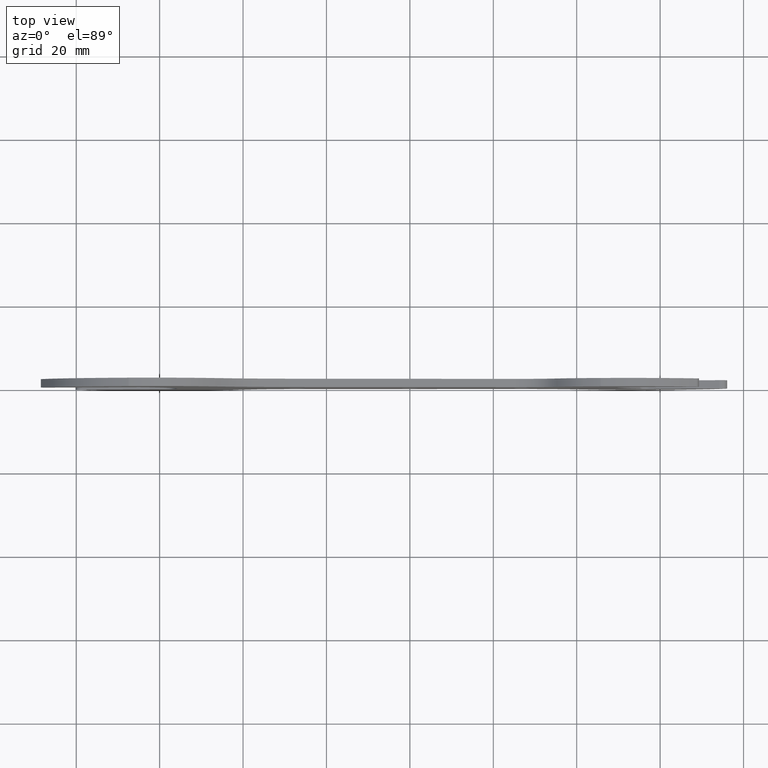
[diagram: clean part render]
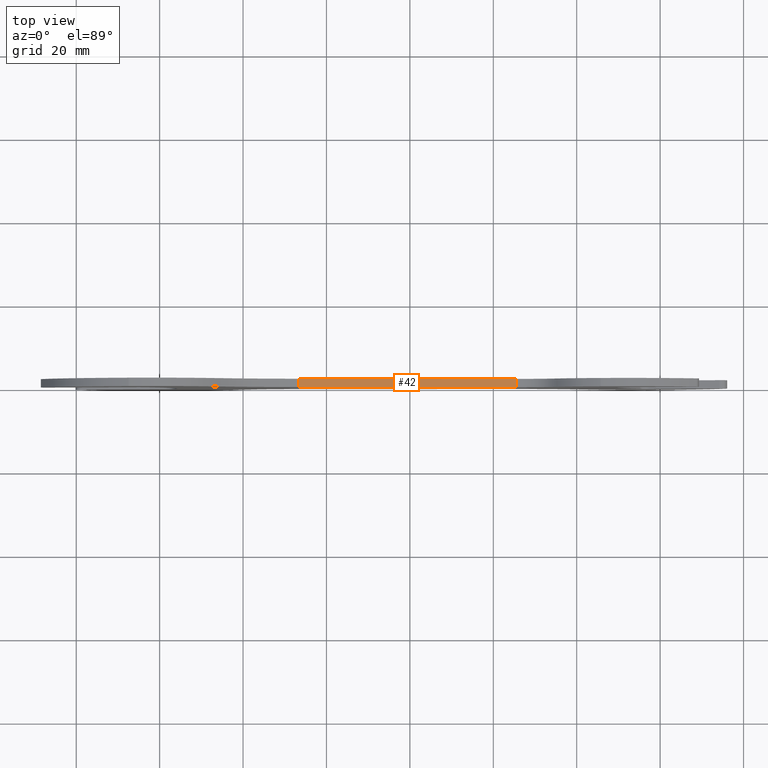
[diagram: same view with one face highlighted and labeled with its STEP entity id]
A machine part, top view. The second image highlights one B-rep face of the part: STEP entity #42.
In plain terms, the highlighted planar face has unit normal (-0.0374, 0, -0.9993).
Its self-contained STEP definition (entity closure, byte-faithful):
#42=ADVANCED_FACE('',(#100),#99,.F.);
#99=PLANE('',#458);
#100=FACE_OUTER_BOUND('',#459,.T.);
#455=CARTESIAN_POINT('',(3.06888080096E+01,-2.00000000000E-01,1.22270116664E+01));
#456=DIRECTION('',(-3.74269334824E-02,0.00000000000E+00,-9.99299366882E-01));
#457=DIRECTION('',(-9.99299366882E-01,0.00000000000E+00,3.74269334824E-02));
#458=AXIS2_PLACEMENT_3D('',#455,#456,#457);
#459=EDGE_LOOP('',(#666,#667,#668,#669));
#666=ORIENTED_EDGE('',*,*,#859,.T.);
#667=ORIENTED_EDGE('',*,*,#869,.F.);
#668=ORIENTED_EDGE('',*,*,#870,.F.);
#669=ORIENTED_EDGE('',*,*,#866,.T.);
#859=EDGE_CURVE('',#935,#1117,#1124,.T.);
#866=EDGE_CURVE('',#1172,#935,#1173,.T.);
#869=EDGE_CURVE('',#1192,#1117,#1193,.T.);
#870=EDGE_CURVE('',#1172,#1192,#1199,.T.);
#935=VERTEX_POINT('',#1615);
#1117=VERTEX_POINT('',#1740);
#1124=LINE('',#1745,#1746);
#1172=VERTEX_POINT('',#1778);
#1173=LINE('',#1779,#1780);
#1192=VERTEX_POINT('',#1790);
#1193=LINE('',#1791,#1792);
#1199=LINE('',#1794,#1795);
#1615=CARTESIAN_POINT('',(-2.67006986228E+01,0.00000000000E+00,1.43764308680E+01));
#1740=CARTESIAN_POINT('',(2.54715801339E+01,0.00000000000E+00,1.24224134120E+01));
#1745=CARTESIAN_POINT('',(-2.67006986228E+01,-1.42108547152E-14,1.43764308680E+01));
#1746=VECTOR('',#1747,5.22088580117E+01);
#1747=DIRECTION('',(9.99299366882E-01,0.00000000000E+00,-3.74269334824E-02));
#1778=CARTESIAN_POINT('',(-2.67006986228E+01,2.00000000000E+00,1.43764308680E+01));
#1779=CARTESIAN_POINT('',(-2.67006986228E+01,2.00000000000E+00,1.43764308680E+01));
#1780=VECTOR('',#1781,2.00000000000E+00);
#1781=DIRECTION('',(0.00000000000E+00,-1.00000000000E+00,0.00000000000E+00));
#1790=CARTESIAN_POINT('',(2.54715801339E+01,2.00000000000E+00,1.24224134120E+01));
#1791=CARTESIAN_POINT('',(2.54715801339E+01,2.00000000000E+00,1.24224134120E+01));
#1792=VECTOR('',#1793,2.00000000000E+00);
#1793=DIRECTION('',(0.00000000000E+00,-1.00000000000E+00,0.00000000000E+00));
#1794=CARTESIAN_POINT('',(-2.67006986228E+01,2.00000000000E+00,1.43764308680E+01));
#1795=VECTOR('',#1796,5.22088580117E+01);
#1796=DIRECTION('',(9.99299366882E-01,0.00000000000E+00,-3.74269334824E-02));